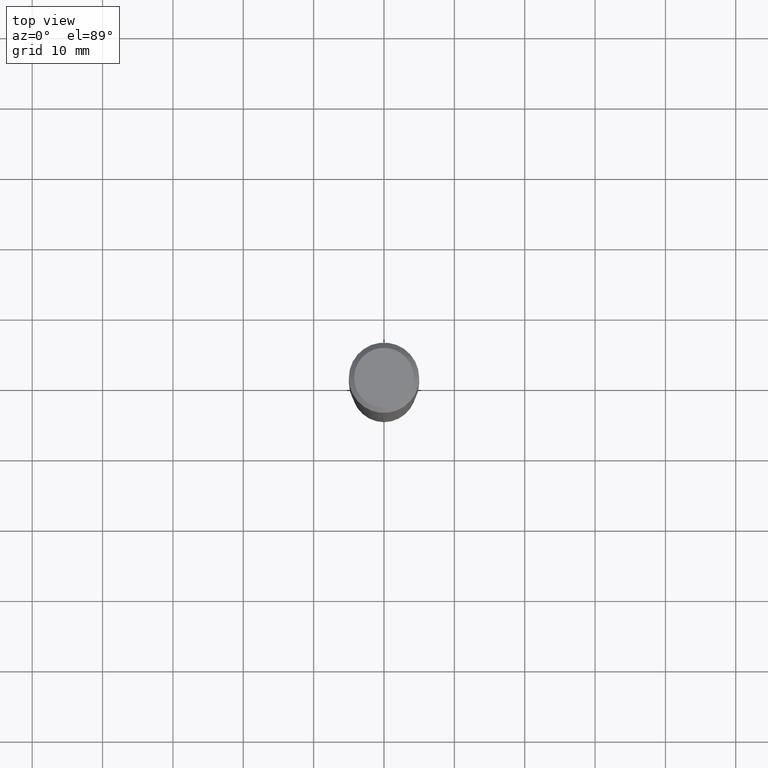
[diagram: clean part render]
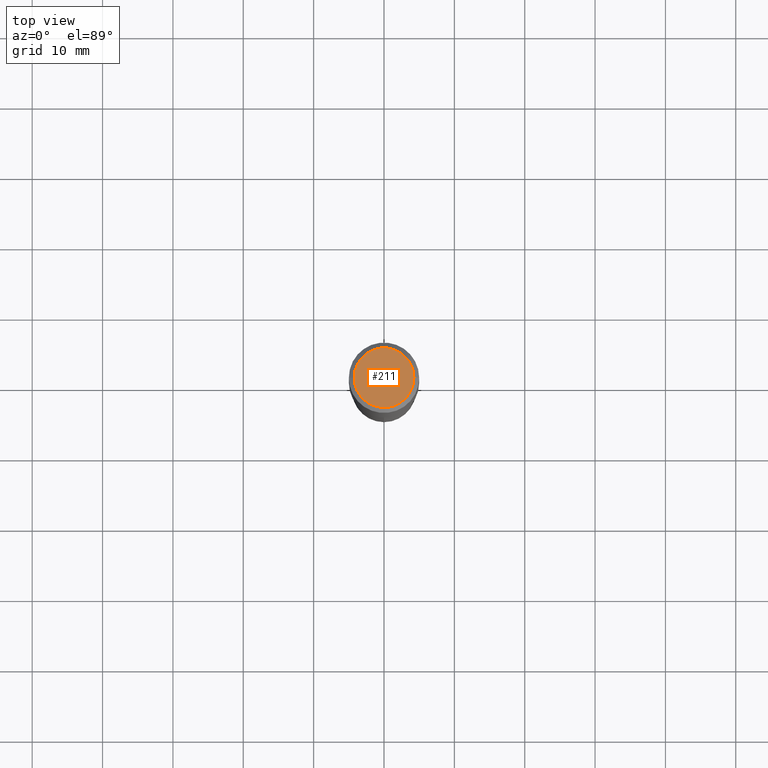
[diagram: same view with one face highlighted and labeled with its STEP entity id]
A machine part, top view. The second image highlights one B-rep face of the part: STEP entity #211.
In plain terms, the highlighted planar face has unit normal (0, -0, -1).
Its self-contained STEP definition (entity closure, byte-faithful):
#49 = ORIENTED_EDGE ( 'NONE', *, *, #407, .T. ) ;
#61 = CIRCLE ( 'NONE', #479, 0.1673224999999999851 ) ;
#63 = CARTESIAN_POINT ( 'NONE',  ( -5.008488096090108951E-47, 7.150793614331948590E-33, 2.048068690724054183E-18 ) ) ;
#69 = PLANE ( 'NONE',  #148 ) ;
#78 = DIRECTION ( 'NONE',  ( -2.445468806185136597E-29, 3.491481338843145583E-15, 1.000000000000000000 ) ) ;
#95 = DIRECTION ( 'NONE',  ( -2.445468806185136597E-29, 3.491481338843145583E-15, 1.000000000000000000 ) ) ;
#113 = EDGE_CURVE ( 'NONE', #236, #274, #319, .T. ) ;
#148 = AXIS2_PLACEMENT_3D ( 'NONE', #63, #216, #364 ) ;
#159 = CARTESIAN_POINT ( 'NONE',  ( 0.1673224999999999851, -1.300749711163072594E-15, 4.096137381456741925E-18 ) ) ;
#195 = AXIS2_PLACEMENT_3D ( 'NONE', #439, #95, #253 ) ;
#211 = ADVANCED_FACE ( 'NONE', ( #413 ), #69, .F. ) ;
#216 = DIRECTION ( 'NONE',  ( 2.438088387897960049E-29, -3.491481338843145188E-15, -1.000000000000000000 ) ) ;
#218 = CARTESIAN_POINT ( 'NONE',  ( -1.001697619218021790E-46, 1.430158722866389718E-32, 4.096137381448108366E-18 ) ) ;
#236 = VERTEX_POINT ( 'NONE', #159 ) ;
#253 = DIRECTION ( 'NONE',  ( 1.000000000000000000, -6.982962677686267499E-15, 4.876294436782262290E-29 ) ) ;
#265 = CARTESIAN_POINT ( 'NONE',  ( -0.1673224999999999851, 1.219954130253505460E-15, 4.096137381439757534E-18 ) ) ;
#274 = VERTEX_POINT ( 'NONE', #265 ) ;
#304 = EDGE_LOOP ( 'NONE', ( #49, #421 ) ) ;
#319 = CIRCLE ( 'NONE', #195, 0.1673224999999999851 ) ;
#364 = DIRECTION ( 'NONE',  ( -1.000000000000000000, 6.982962677686265922E-15, -4.876176775795935793E-29 ) ) ;
#384 = DIRECTION ( 'NONE',  ( 1.000000000000000000, -6.982962677686267499E-15, 4.876294436782262290E-29 ) ) ;
#407 = EDGE_CURVE ( 'NONE', #274, #236, #61, .T. ) ;
#413 = FACE_OUTER_BOUND ( 'NONE', #304, .T. ) ;
#421 = ORIENTED_EDGE ( 'NONE', *, *, #113, .T. ) ;
#439 = CARTESIAN_POINT ( 'NONE',  ( -1.001697619218021790E-46, 1.430158722866389718E-32, 4.096137381448108366E-18 ) ) ;
#479 = AXIS2_PLACEMENT_3D ( 'NONE', #218, #78, #384 ) ;